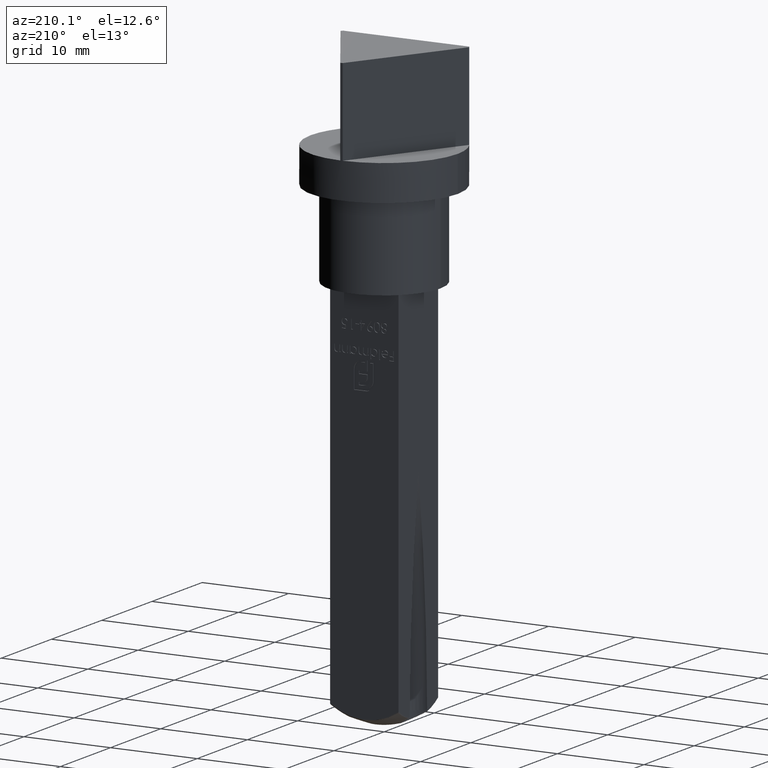
[diagram: clean part render]
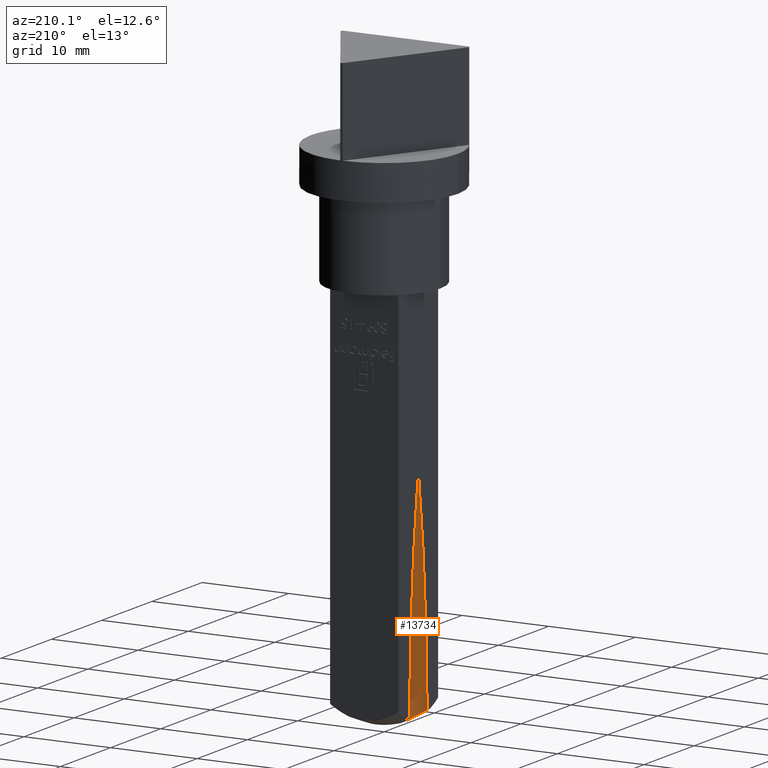
[diagram: same view with one face highlighted and labeled with its STEP entity id]
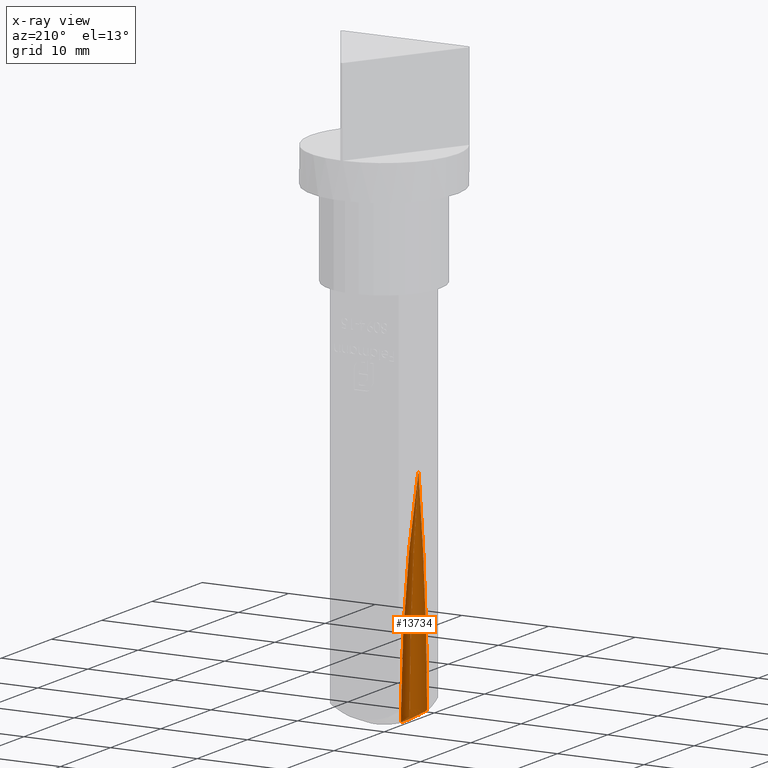
[diagram: x-ray of the same camera — body ghosted, the highlighted face saturated]
A machine part, auxiliary view. The second image highlights one B-rep face of the part: STEP entity #13734.
The next image is the same camera in x-ray: the body ghosted, the highlighted face saturated — about 0% of this face is hidden behind the body in this view.
In plain terms, the highlighted toroidal blend (fillet) surface has major radius 192.268 mm and minor (blend) radius 194.018 mm.
Its self-contained STEP definition (entity closure, byte-faithful):
#29 = CARTESIAN_POINT ( 'NONE',  ( -3.950000000000001066, 1.746177941999993433, -50.78218211626187184 ) ) ;
#571 = DIRECTION ( 'NONE',  ( 0.000000000000000000, -1.836970198721029934E-16, 1.000000000000000000 ) ) ;
#747 = DIRECTION ( 'NONE',  ( -1.117631323685008499E-16, 1.000000000000000000, -2.310367472321649368E-14 ) ) ;
#885 = TOROIDAL_SURFACE ( 'NONE', #3580, -192.2678571428577072, 194.0178571428576788 ) ;
#931 = DIRECTION ( 'NONE',  ( -1.117631323685008499E-16, 1.000000000000000000, 0.000000000000000000 ) ) ;
#1019 = CARTESIAN_POINT ( 'NONE',  ( -3.530828465172153763, -1.710597525921996542, -51.04328972775599738 ) ) ;
#1120 = CARTESIAN_POINT ( 'NONE',  ( -3.531184525361508619, 1.710503374418301803, -51.04306019812865003 ) ) ;
#2058 = CARTESIAN_POINT ( 'NONE',  ( -3.127892878666839405, 1.547306340820351345, -51.28347460359172061 ) ) ;
#2193 = CARTESIAN_POINT ( 'NONE',  ( -2.850863340094422327, 1.365518424124583019, -51.44454341463350033 ) ) ;
#2243 = CARTESIAN_POINT ( 'NONE',  ( -2.200370168130884263, 0.1286481552030029341, -51.80944634941334215 ) ) ;
#2981 = DIRECTION ( 'NONE',  ( -1.000000000000000000, -1.097926250618232396E-16, -0.000000000000000000 ) ) ;
#3180 = CARTESIAN_POINT ( 'NONE',  ( -2.302975013055005071, -0.6031770951658267377, -51.75307258919809072 ) ) ;
#3278 = CARTESIAN_POINT ( 'NONE',  ( -2.677784426126027739, -1.206343835815210985, -51.54342860769509116 ) ) ;
#3321 = CARTESIAN_POINT ( 'NONE',  ( -2.266914798338056425, 0.4943262147240172211, -51.77291446303139821 ) ) ;
#3580 = AXIS2_PLACEMENT_3D ( 'NONE', #3914, #571, #13814 ) ;
#3835 = FACE_OUTER_BOUND ( 'NONE', #6091, .T. ) ;
#3859 = EDGE_CURVE ( 'NONE', #5042, #4845, #14010, .T. ) ;
#3914 = CARTESIAN_POINT ( 'NONE',  ( -3.950000000000000178, 0.000000000000000000, -52.00000000000000000 ) ) ;
#4023 = CIRCLE ( 'NONE', #4467, 194.0178571428576788 ) ;
#4274 = CARTESIAN_POINT ( 'NONE',  ( -2.199825024419134412, -0.1210102354082163295, -51.80974501887450145 ) ) ;
#4415 = CARTESIAN_POINT ( 'NONE',  ( -2.401417235963435814, -0.8234899255625820480, -51.69854475654964432 ) ) ;
#4459 = CARTESIAN_POINT ( 'NONE',  ( -3.123324642768471104, -1.556317136244959265, -51.28698868538878486 ) ) ;
#4467 = AXIS2_PLACEMENT_3D ( 'NONE', #5246, #2981, #931 ) ;
#4743 = AXIS2_PLACEMENT_3D ( 'NONE', #10662, #14106, #747 ) ;
#4845 = VERTEX_POINT ( 'NONE', #9728 ) ;
#5042 = VERTEX_POINT ( 'NONE', #6226 ) ;
#5246 = CARTESIAN_POINT ( 'NONE',  ( -3.950000000000021050, 192.2678571428577072, -51.99999999999996447 ) ) ;
#5494 = CARTESIAN_POINT ( 'NONE',  ( -3.227429717814117804, 1.595844297265962108, -51.22473906818491685 ) ) ;
#5543 = CARTESIAN_POINT ( 'NONE',  ( -3.949999999999999734, -1.746177941999993433, -50.78218211626187184 ) ) ;
#5624 = EDGE_CURVE ( 'NONE', #4845, #13578, #4023, .T. ) ;
#5639 = EDGE_CURVE ( 'NONE', #13578, #5042, #9554, .T. ) ;
#6077 = ORIENTED_EDGE ( 'NONE', *, *, #5639, .T. ) ;
#6091 = EDGE_LOOP ( 'NONE', ( #6077, #7623, #11174 ) ) ;
#6226 = CARTESIAN_POINT ( 'NONE',  ( -3.950000000000001066, 1.746177941999993433, -50.78218211626187184 ) ) ;
#6604 = CARTESIAN_POINT ( 'NONE',  ( -2.214319139713003981, 0.2542774077593016324, -51.80181372173078813 ) ) ;
#7623 = ORIENTED_EDGE ( 'NONE', *, *, #3859, .T. ) ;
#8678 = CARTESIAN_POINT ( 'NONE',  ( -2.264150662233622047, -0.4849370447513169924, -51.77443533707107548 ) ) ;
#8827 = CARTESIAN_POINT ( 'NONE',  ( -2.682710979477017421, 1.211445299975400847, -51.54063150816912753 ) ) ;
#8874 = CARTESIAN_POINT ( 'NONE',  ( -2.306067435545648081, 0.6116796858659044878, -51.75136739235961159 ) ) ;
#9139 = CARTESIAN_POINT ( 'NONE',  ( -3.950000000000000178, 0.000000000000000000, -25.99999999999999645 ) ) ;
#9554 = CIRCLE ( 'NONE', #4743, 194.0178571428576788 ) ;
#9728 = CARTESIAN_POINT ( 'NONE',  ( -3.949999999999999734, -1.746177941999993433, -50.78218211626187184 ) ) ;
#9845 = CARTESIAN_POINT ( 'NONE',  ( -3.739087125246884025, 1.747015290763992201, -50.91558253241350940 ) ) ;
#9941 = CARTESIAN_POINT ( 'NONE',  ( -2.406274187308864665, 0.8326464619260249833, -51.69584610245725997 ) ) ;
#10662 = CARTESIAN_POINT ( 'NONE',  ( -3.949999999999979750, -192.2678571428577072, -52.00000000000003553 ) ) ;
#11049 = CARTESIAN_POINT ( 'NONE',  ( -2.212769246436774750, -0.2436983853412999501, -51.80266305510254199 ) ) ;
#11174 = ORIENTED_EDGE ( 'NONE', *, *, #5624, .T. ) ;
#12095 = CARTESIAN_POINT ( 'NONE',  ( -2.940138606648916131, 1.432307342363861702, -51.39305992440876025 ) ) ;
#12141 = CARTESIAN_POINT ( 'NONE',  ( -2.930642195787374504, -1.439744397435683831, -51.39898973766476331 ) ) ;
#12190 = CARTESIAN_POINT ( 'NONE',  ( -2.462099579217876588, -0.9282424212092740268, -51.66478699106549755 ) ) ;
#13136 = CARTESIAN_POINT ( 'NONE',  ( -2.600637791443535463, -1.119901174107104325, -51.58702827267059376 ) ) ;
#13183 = CARTESIAN_POINT ( 'NONE',  ( -2.603886714392654511, 1.123655023067088310, -51.58519371225221306 ) ) ;
#13271 = CARTESIAN_POINT ( 'NONE',  ( -2.466266808207231875, 0.9347093749868241597, -51.66245843681027594 ) ) ;
#13578 = VERTEX_POINT ( 'NONE', #9139 ) ;
#13734 = ADVANCED_FACE ( 'NONE', ( #3835 ), #885, .F. ) ;
#13814 = DIRECTION ( 'NONE',  ( 0.000000000000000000, -1.000000000000000000, -1.836970198721029934E-16 ) ) ;
#14010 = B_SPLINE_CURVE_WITH_KNOTS ( 'NONE', 3,
 ( #29, #9845, #1120, #5494, #2058, #12095, #2193, #8827, #13183, #13271, #9941, #8874, #3321, #6604, #2243, #4274, #11049, #8678, #3180, #4415, #12190, #13136, #3278, #12141, #4459, #1019, #14294, #5543 ),
 .UNSPECIFIED., .F., .F.,
 ( 4, 2, 2, 2, 2, 2, 2, 2, 2, 2, 2, 2, 2, 4 ),
 ( 8.673617379884035472E-19, 0.0007486645857417620733, 0.001122996878612648151, 0.001497329171483534555, 0.001871661464354420525, 0.002245993757225307145, 0.002620326050096193765, 0.002994658342967079952, 0.003368990635837967006, 0.003743322928708853192, 0.004117655221579740246, 0.004491987514450625565, 0.005240652100192397071, 0.005989316685934168577 ),
 .UNSPECIFIED. ) ;
#14106 = DIRECTION ( 'NONE',  ( -1.000000000000000000, -1.097926250618232396E-16, -0.000000000000000000 ) ) ;
#14294 = CARTESIAN_POINT ( 'NONE',  ( -3.738774753989884125, -1.747016530914414778, -50.91578010430532686 ) ) ;